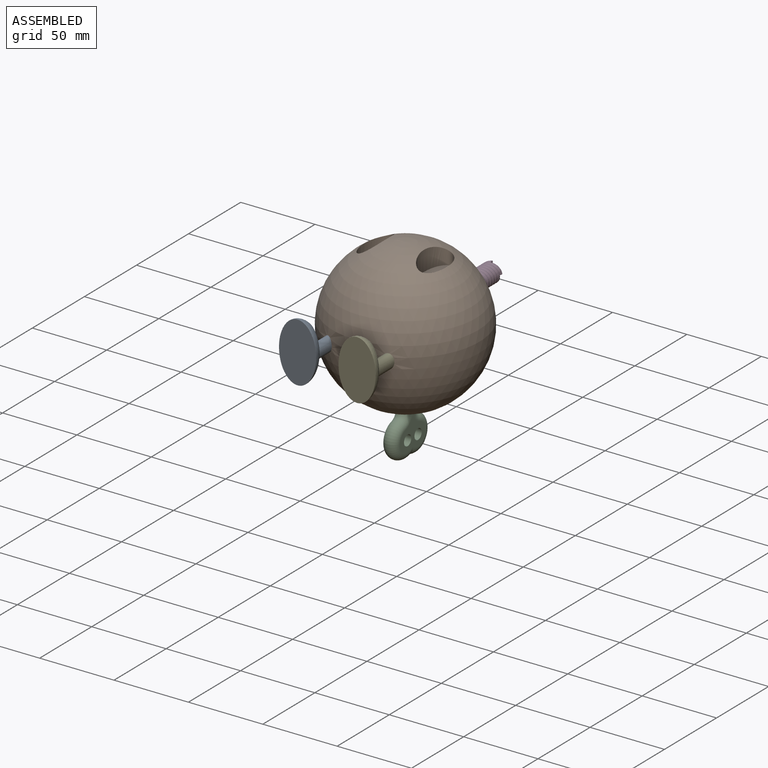
[diagram: assembled view]
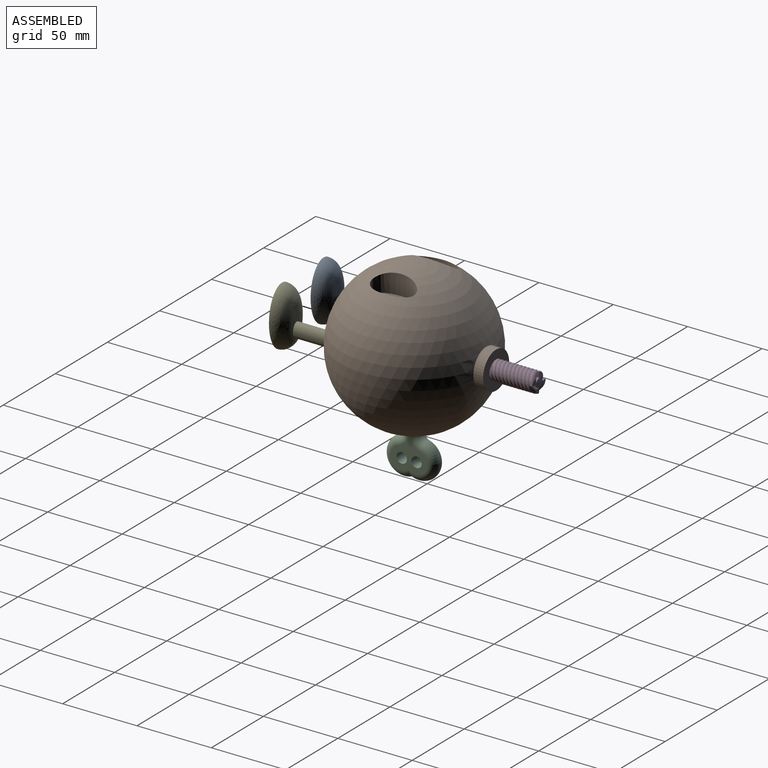
[diagram: assembled view, second angle]
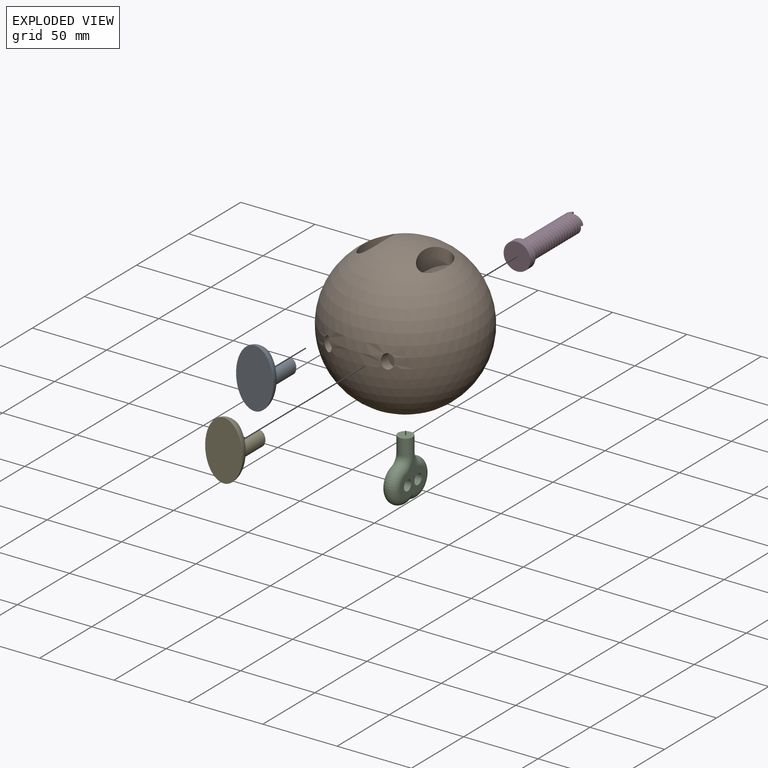
[diagram: exploded view]
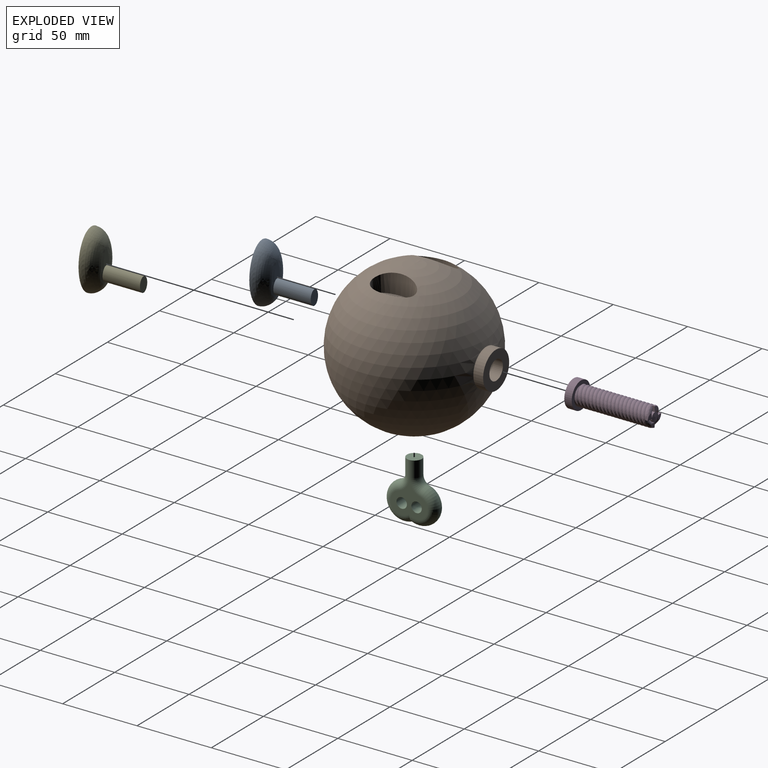
[diagram: exploded view, second angle]
ASSEMBLY  parts=5 mates=4
PART A: 9 faces, bbox 25x40x35 mm
  f0: bspline ~33.1x12.79mm, area 444.7mm2, adj f2,f3,f4,f6,f7
  f1: bspline ~33.34x12.83mm, area 444.7mm2, adj f2,f3,f4,f6,f7
  f2: bspline ~14.82x9.76mm, area 167.1mm2, adj f0,f1,f3,f7
  f3: extruded ~40x25mm, area 10.3mm2, adj f0,f1,f2,f5,f6
  f4: plane 11.99x5.21mm, normal (0,0,1), area 42.4mm2, adj f0,f1,f7
  f5: plane 40x25mm, normal (0,0,-1), area 785.4mm2, adj f3
  f6: bspline ~14.83x10.47mm, area 169.6mm2, adj f0,f1,f3
  f7: extruded ~25.15x10mm, area 674.5mm2, adj f0,f1,f2,f4,f8
  f8: plane 10x7mm, normal (0,0,1), area 55mm2, adj f7
PART B: 15 faces, bbox 100x105x99.7 mm
  f0: sphere r=50mm, area 29925.1mm2, adj f1,f3,f5,f7,f9,f11
  f1: extruded ~30x15mm, area 678.6mm2, adj f0,f2
  f2: plane 30x15mm, normal (0,0,1), area 353.4mm2, adj f1
  f3: extruded ~30x15mm, area 678.3mm2, adj f0,f4
  f4: plane 30x15mm, normal (0,0,1), area 353.4mm2, adj f3
  f5: cylinder r=5.15mm len=10.3mm, axis (0,0,-1), area 315mm2, adj f0,f6
  f6: plane 10.3x10.3mm, normal (0,0,-1), area 83.3mm2, adj f5
  f7: extruded ~10x7.2mm, area 151.1mm2, adj f0,f8
  f8: plane 10x7mm, normal (0,1,0), area 55mm2, adj f7
  f9: extruded ~10x7.2mm, area 151.1mm2, adj f0,f10
  f10: plane 10x7mm, normal (0,1,0), area 55mm2, adj f9
  f11: cylinder r=12.5mm len=25mm, axis (0,1,0), area 517.4mm2, adj f0,f12
  f12: plane 25x25mm, normal (0,-1,0), area 358.1mm2, adj f11,f13
  f13: cylinder r=6.5mm len=20.61mm, axis (0,-1,0), area 841.7mm2, adj f12,f14
  f14: sphere r=35mm, area 15259.9mm2, adj f13
PART C: 10 faces, bbox 37.1x41x10 mm
  f0: cylinder r=3.5mm len=10mm, axis (0,0,-1), area 219.9mm2, adj f2,f3
  f1: cylinder r=3.5mm len=10mm, axis (0,0,-1), area 219.9mm2, adj f2,f3
  f2: plane 25x24.27mm, normal (0,0,1), area 275.9mm2, adj f0,f1,f5,f6,f7,f8
  f3: plane 25x24.27mm, normal (0,0,-1), area 275.9mm2, adj f0,f1,f5,f6,f7,f8
  f4: cylinder r=5mm len=10.73mm, axis (0,1,0), area 337.1mm2, adj f5,f6,f9
  f5: torus R=10mm, axis (0,0,1), area 137.2mm2, adj f2,f3,f4,f7
  f6: torus R=10mm, axis (0,0,1), area 137.2mm2, adj f2,f3,f4,f8
  f7: torus R=7.5mm, axis (0,0,1), area 560.6mm2, adj f2,f3,f5,f8
  f8: torus R=7.5mm, axis (0,0,1), area 560.6mm2, adj f2,f3,f6,f7
  f9: plane 10x10mm, normal (0,-1,0), area 78.5mm2, adj f4
PART D: 16 faces, bbox 18.3x18.3x57.1 mm
  f0: cylinder r=3mm len=2.94mm, axis (0,0,-1), area 4.5mm2, adj f8,f9,f15
  f1: cylinder r=3mm len=2.94mm, axis (0,0,-1), area 4.5mm2, adj f10,f11,f15
  f2: cylinder r=3mm len=2.94mm, axis (0,0,-1), area 4.5mm2, adj f12,f13,f15
  f3: plane 18.09x18.09mm, normal (0,0,1), area 124.9mm2, adj f4,f8,f10,f12,f14
  f4: cylinder r=9mm len=18mm, axis (0,0,-1), area 282.7mm2, adj f3,f5
  f5: plane 18x18mm, normal (0,0,-1), area 254.5mm2, adj f4
  f6: cylinder r=3mm len=2.94mm, axis (0,0,-1), area 4.5mm2, adj f7,f14,f15
  f7: plane 3.9x2.54mm, normal (0,1,0), area 5.4mm2, adj f6,f8,f14,f15
  f8: bspline ~56.04x13.12mm, area 547.4mm2, adj f0,f3,f7,f9,f10,f14,f15
  f9: plane 3.91x2.55mm, normal (1,0,0), area 5.4mm2, adj f0,f8,f10,f15
  f10: bspline ~56.04x13.12mm, area 547.4mm2, adj f1,f3,f8,f9,f11,f12,f15
  f11: plane 3.91x2.55mm, normal (0,-1,0), area 5.4mm2, adj f1,f10,f12,f15
  f12: bspline ~56.04x13.12mm, area 547.4mm2, adj f2,f3,f10,f11,f13,f14,f15
  f13: plane 3.91x2.55mm, normal (-1,0,0), area 5.4mm2, adj f2,f12,f14,f15
  f14: bspline ~56.04x13.12mm, area 547.4mm2, adj f3,f6,f7,f8,f12,f13,f15
  f15: cone r=0mm half-angle=84.3deg, axis (0,0,-1), area 66.2mm2, adj f0,f1,f2,f6,f7,f8,f9,f10
PART E: same geometry as A
PLACE A rot(axis=(-1,0,0),90deg) t=(-18.41,-47.48,56)mm
PLACE B rot(axis=(0,0,1),180deg) t=(1.59,27.52,0)mm
PLACE C rot(axis=(-0.58,-0.58,0.58),120deg) t=(6.59,32.52,-17.5)mm
PLACE D rot(axis=(-1,0,0),90deg) t=(1.59,56.91,50)mm
PLACE E rot(axis=(-1,0,0),90deg) t=(21.59,-47.48,56)mm
MATE fastened A.f8 <-> B.f10  axis (0,1,0) through (-18.41,-12.48,50)mm
MATE fastened C.f4 <-> B.f5  axis (0,0,1) through (1.59,27.52,10)mm
MATE fastened E.f8 <-> B.f8  axis (0,1,0) through (21.59,-12.48,50)mm
MATE fastened D.f15 <-> B.f11  axis (0,1,0) through (1.59,61.91,50)mm
